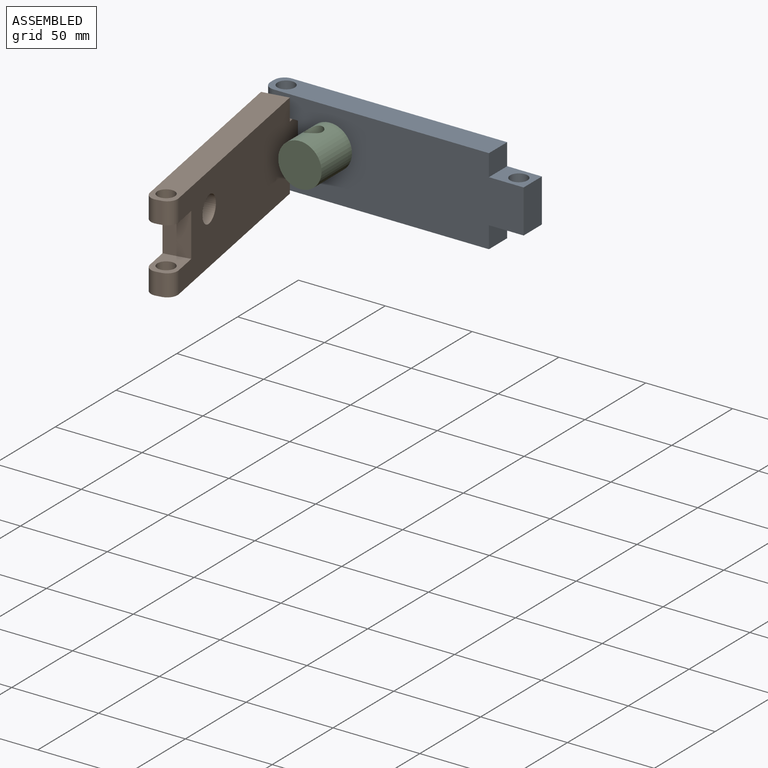
[diagram: assembled view]
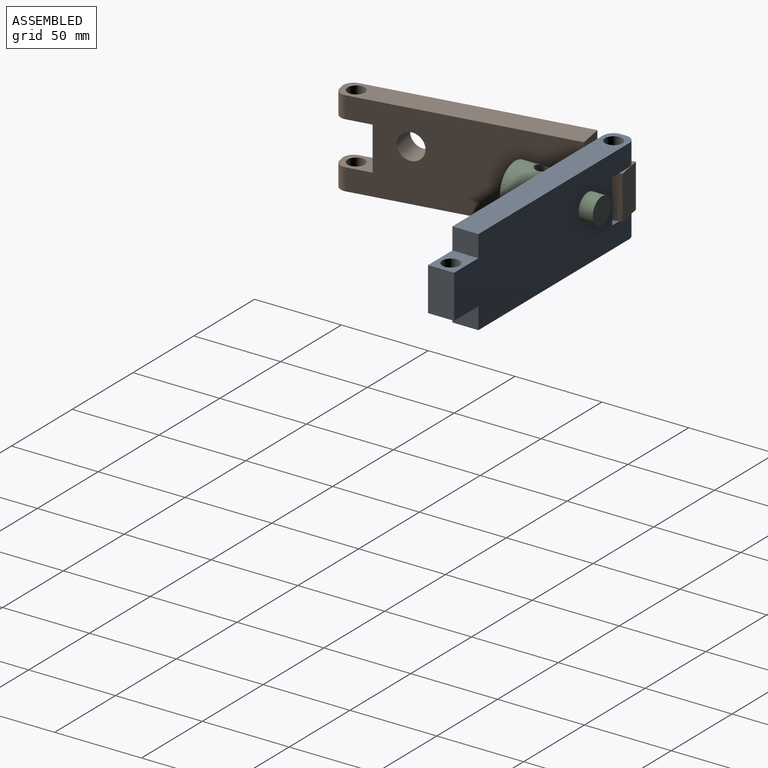
[diagram: assembled view, second angle]
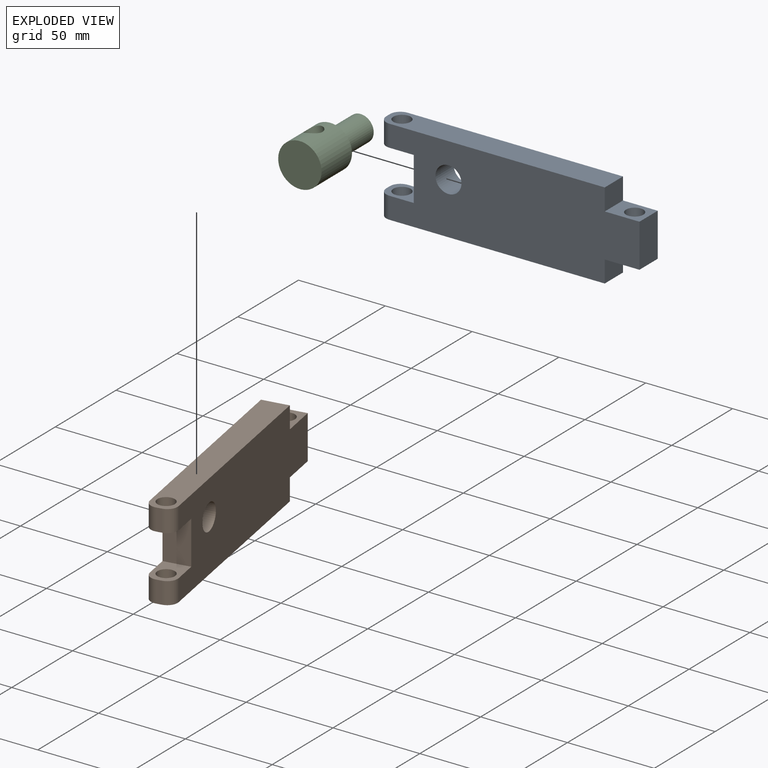
[diagram: exploded view]
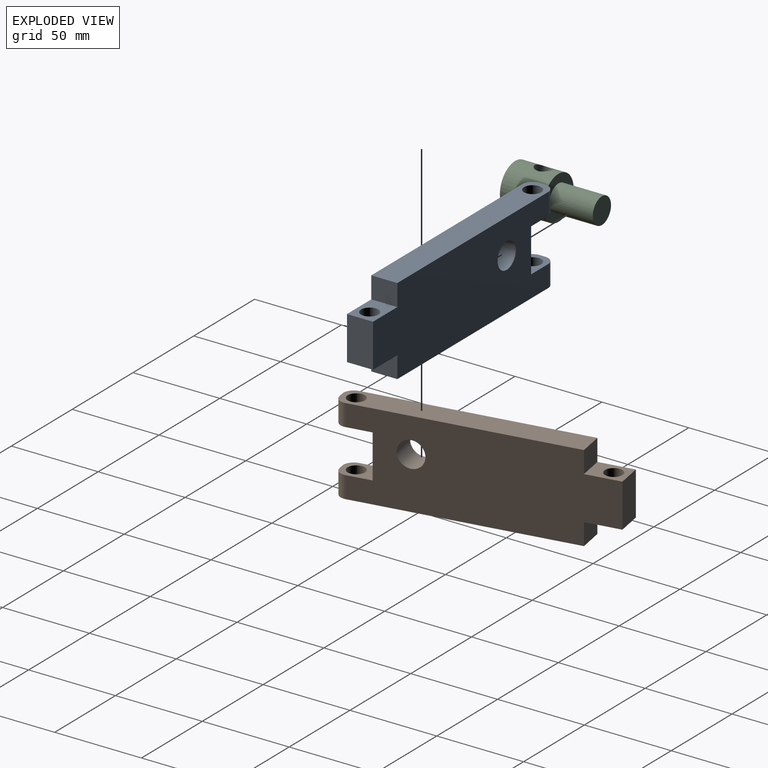
[diagram: exploded view, second angle]
ASSEMBLY  parts=3 mates=2
PART A: 22 faces, bbox 150x15x50 mm
  f0: plane 12.5x3mm, normal (-1,0,0), area 37.5mm2, adj f6,f13,f18,f19
  f1: plane 25x15mm, normal (1,0,0), area 375mm2, adj f2,f3,f8,f10
  f2: plane 144x50mm, normal (0,-1,0), area 6173.3mm2, adj f1,f4,f6,f7,f8,f9,f10,f11
  f3: plane 144x50mm, normal (0,1,0), area 6173.3mm2, adj f1,f4,f6,f7,f8,f9,f10,f11
  f4: plane 130x15mm, normal (0,0,1), area 1856mm2, adj f2,f3,f5,f11,f16,f20,f21
  f5: plane 12.5x3mm, normal (-1,0,0), area 37.5mm2, adj f4,f12,f20,f21
  f6: plane 130x15mm, normal (0,0,-1), area 1856mm2, adj f0,f2,f3,f9,f15,f18,f19
  f7: cylinder r=7.5mm len=15mm, axis (0,-1,0), area 706.9mm2, adj f2,f3
  f8: plane 20x15mm, normal (0,0,-1), area 221.5mm2, adj f1,f2,f3,f9,f17
  f9: plane 15x12.5mm, normal (1,0,0), area 187.5mm2, adj f2,f3,f6,f8
  f10: plane 20x15mm, normal (0,0,1), area 221.5mm2, adj f1,f2,f3,f11,f17
  f11: plane 15x12.5mm, normal (1,0,0), area 187.5mm2, adj f2,f3,f4,f10
  f12: plane 20x15mm, normal (0,0,-1), area 206mm2, adj f2,f3,f5,f14,f16,f20,f21
  f13: plane 20x15mm, normal (0,0,1), area 206mm2, adj f0,f2,f3,f14,f15,f18,f19
  f14: plane 25x15mm, normal (-1,0,0), area 375mm2, adj f2,f3,f12,f13
  f15: cylinder r=5mm len=12.5mm, axis (0,0,-1), area 392.7mm2, adj f6,f13
  f16: cylinder r=5mm len=12.5mm, axis (0,0,-1), area 392.7mm2, adj f4,f12
  f17: cylinder r=5mm len=25mm, axis (0,0,-1), area 785.4mm2, adj f8,f10
  f18: cylinder r=6mm len=12.5mm, axis (0,0,1), area 117.8mm2, adj f0,f2,f6,f13
  f19: cylinder r=6mm len=12.5mm, axis (0,0,-1), area 117.8mm2, adj f0,f3,f6,f13
  f20: cylinder r=6mm len=12.5mm, axis (0,0,-1), area 117.8mm2, adj f3,f4,f5,f12
  f21: cylinder r=6mm len=12.5mm, axis (0,0,1), area 117.8mm2, adj f2,f4,f5,f12
PART B: same geometry as A
PART C: 6 faces, bbox 25x50x25 mm
  f0: cylinder r=12.5mm len=25mm, axis (0,1,0), area 1803.1mm2, adj f1,f2,f5
  f1: plane 25x25mm, normal (0,-1,0), area 490.9mm2, adj f0
  f2: plane 25x25mm, normal (0,1,0), area 314.2mm2, adj f0,f3
  f3: cylinder r=7.5mm len=25mm, axis (0,-1,0), area 1178.1mm2, adj f2,f4
  f4: plane 15x15mm, normal (0,1,0), area 176.7mm2, adj f3
  f5: cylinder r=5mm len=25mm, axis (0,0,1), area 753mm2, adj f0
PLACE A at identity
PLACE B rot(axis=(0,0,1),100deg) t=(-55.37,-65.98,0)mm
PLACE C rot(axis=(0,-1,0),11.8deg) t=(0.28,-1.92,7.28)mm
MATE revolute B.f17 <-> A.f15  axis (0,0,-1) through (-67,0,0)mm
MATE cylindrical C.f0 <-> A.f7  axis (0,-1,0) through (-35,-9.42,5)mm
